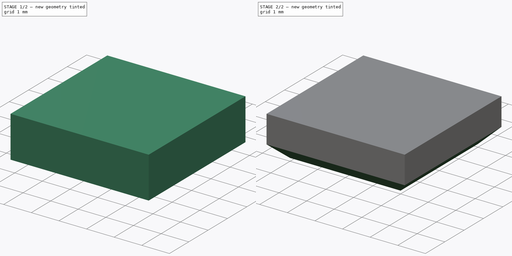
[diagram: build sequence overview — one tinted view per stage of 2, left to right]
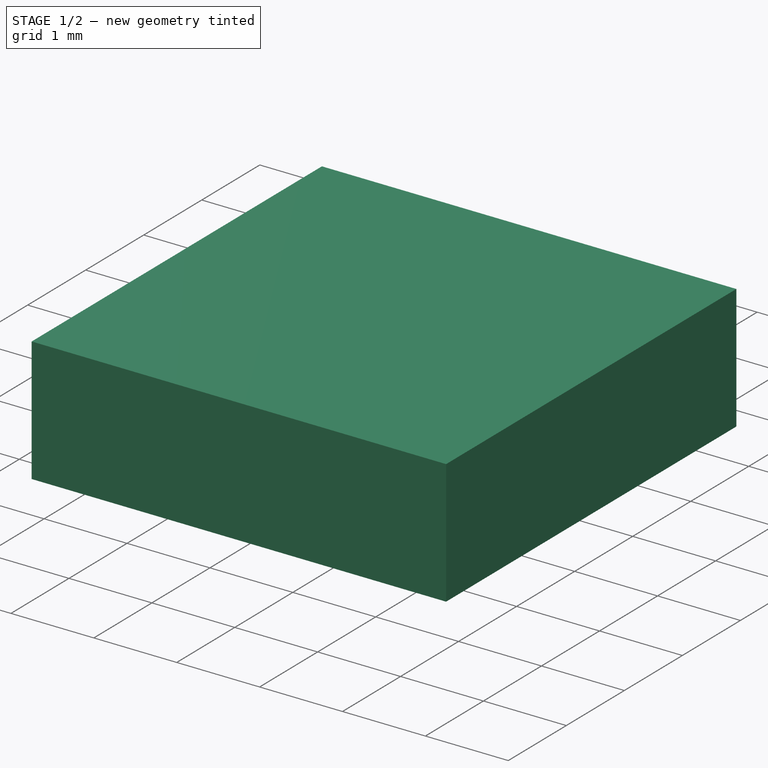
[diagram: stage 1 of 2 — iso view after this stage's code; geometry added in this stage tinted green]
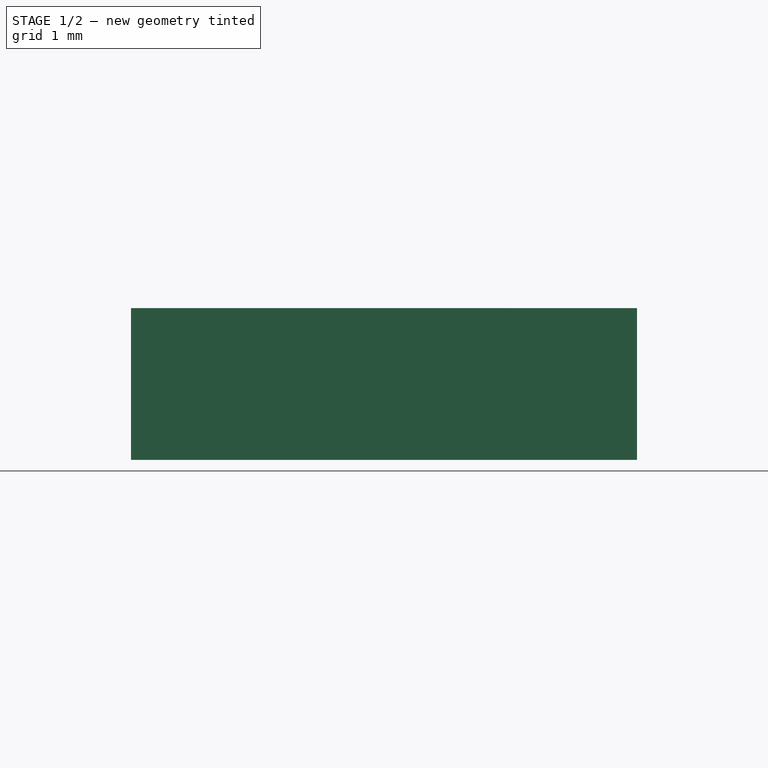
[diagram: stage 1 of 2 — front view after this stage's code; geometry added in this stage tinted green]
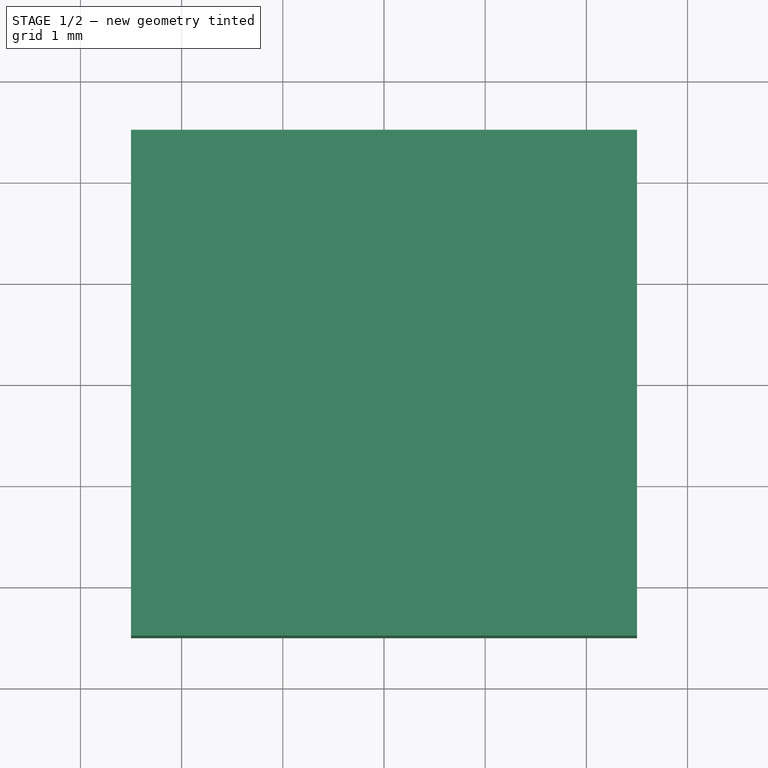
[diagram: stage 1 of 2 — top view after this stage's code; geometry added in this stage tinted green]
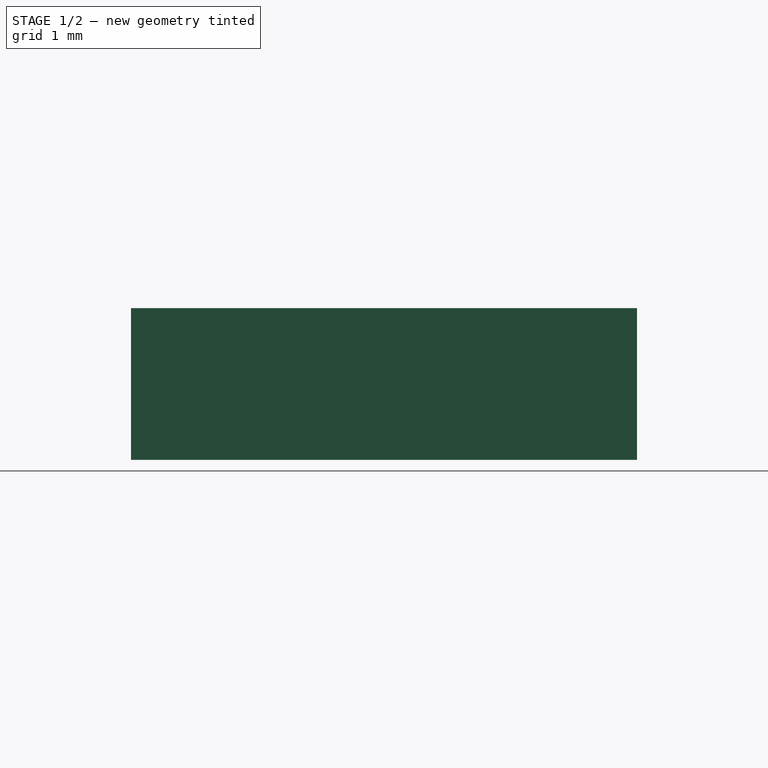
[diagram: stage 1 of 2 — right view after this stage's code; geometry added in this stage tinted green]
FCSTD DOCUMENT  (FreeCAD 0.18R15969 (Git))
Label: rubber
License: All rights reserved
LicenseURL: http://en.wikipedia.org/wiki/All_rights_reserved
objects: Sketcher::SketchObject×1, PartDesign::Pad×1, PartDesign::Chamfer×1, PartDesign::Body×1
note: 5 computed .brp shape members not serialized (recipe doc carries the construction recipe); baked Part::Feature solids carry a one-line shape summary decoded from their .brp

FEATURE [Sketcher::SketchObject] Sketch
  MapMode = 5
  Support = -> [XY_Plane]
  sketch-geometry (5):
    g0: LineSegment StartX=-2.5 StartY=2.5 StartZ=0 EndX=-2.5 EndY=-2.5 EndZ=0
    g1: LineSegment StartX=-2.5 StartY=-2.5 StartZ=0 EndX=2.5 EndY=-2.5 EndZ=0
    g2: LineSegment StartX=2.5 StartY=-2.5 StartZ=0 EndX=2.5 EndY=2.5 EndZ=0
    g3: LineSegment StartX=2.5 StartY=2.5 StartZ=0 EndX=-2.5 EndY=2.5 EndZ=0
    g4: Circle [constr] CenterX=0 CenterY=0 CenterZ=0 NormalX=0 NormalY=0 NormalZ=1 AngleXU=0 Radius=3.53553
  constraints (14):
    c: Coincident(g0,g1)
    c: Coincident(g1,g2)
    c: Coincident(g2,g3)
    c: Coincident(g3,g0)
    c: Equal(g0,g1)
    c: Equal(g0,g2)
    c: Equal(g0,g3)
    c: PointOnObject(g0,g4)
    c: PointOnObject(g1,g4)
    c: PointOnObject(g2,g4)
    c: PointOnObject(g3,g4)
    c: Coincident(g4,g-1)
    c: Horizontal(g3)
    c: DistanceX(g3,g3) = 5
FEATURE [PartDesign::Pad] Pad
  Length = 1.5
  Length2 = 100
  Profile = -> Sketch
  Refine = true
  Type = 0
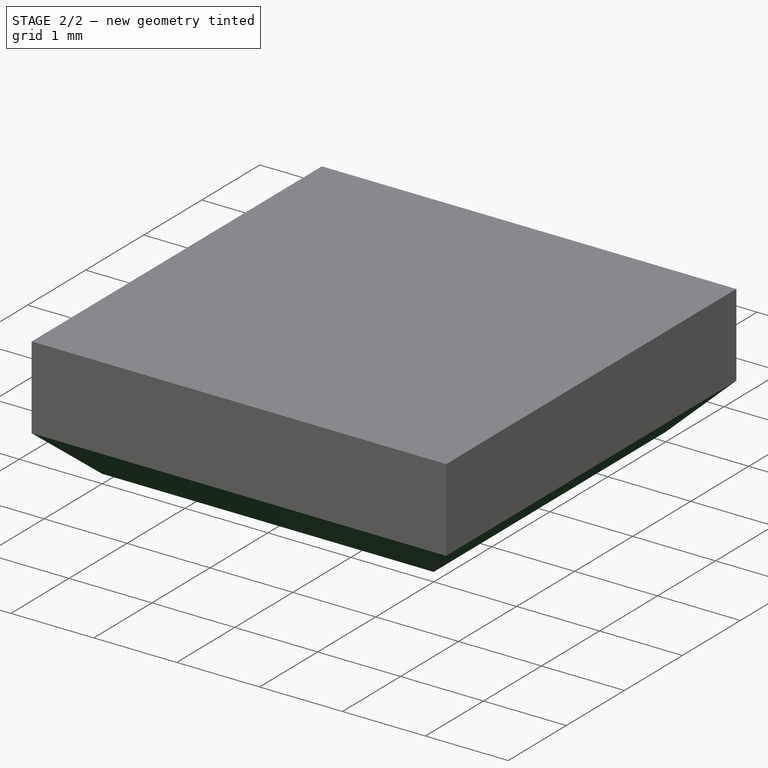
[diagram: stage 2 of 2 — iso view after this stage's code; geometry added in this stage tinted green]
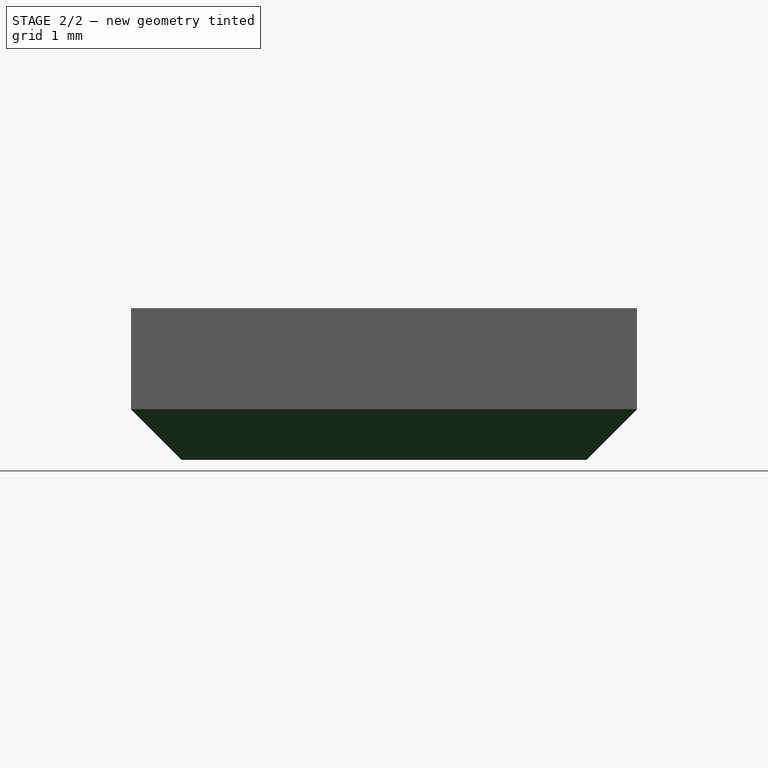
[diagram: stage 2 of 2 — front view after this stage's code; geometry added in this stage tinted green]
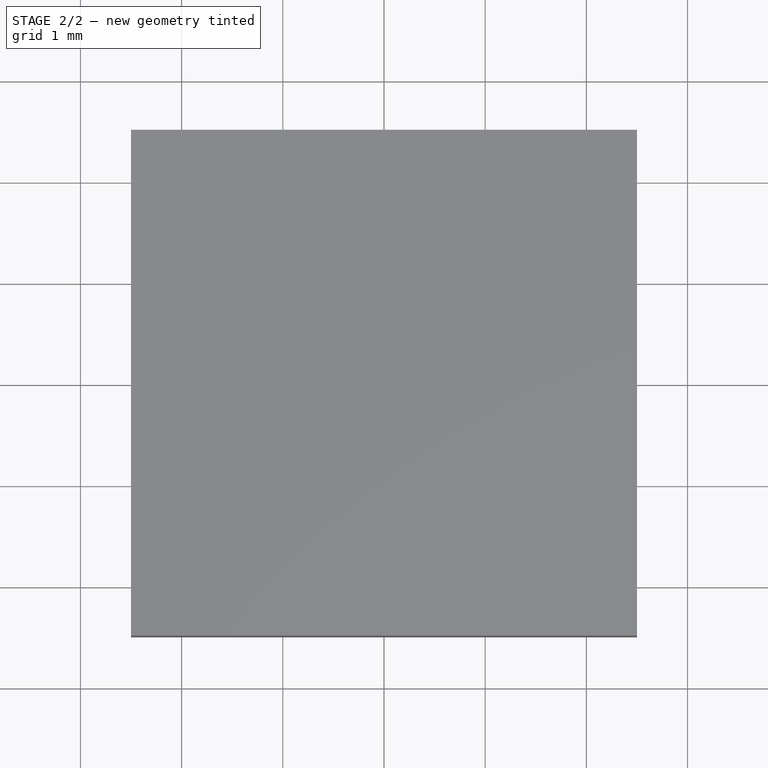
[diagram: stage 2 of 2 — top view after this stage's code; geometry added in this stage tinted green]
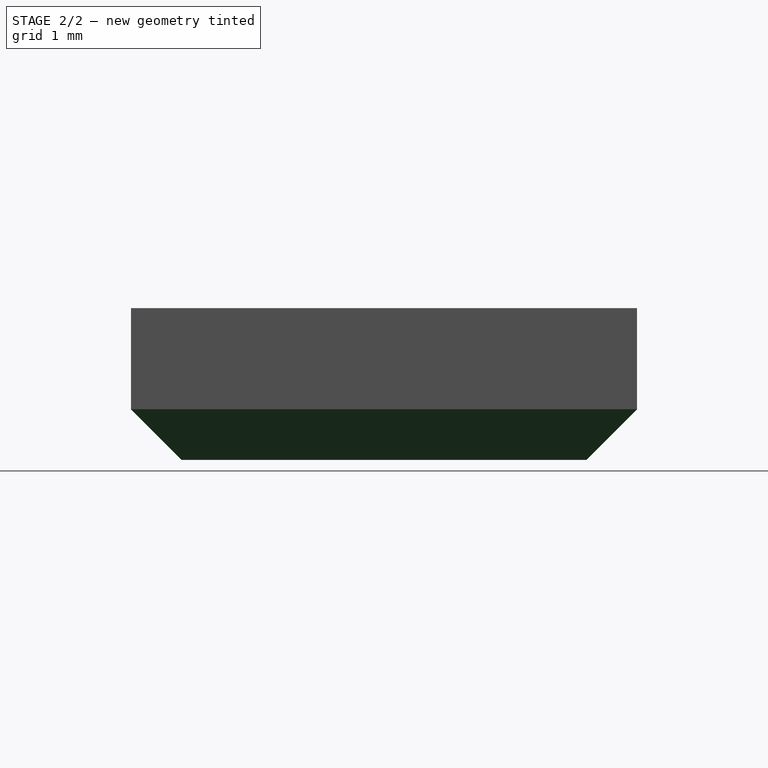
[diagram: stage 2 of 2 — right view after this stage's code; geometry added in this stage tinted green]
FEATURE [PartDesign::Chamfer] Chamfer
  Base = -> Pad [Edge3,Edge6,Edge9,Edge11]
  BaseFeature = -> Pad
  Size = 0.5
FEATURE [PartDesign::Body] Body
  Group = -> [Sketch,Pad,Chamfer]
  Origin = -> Origin
  Tip = -> Chamfer
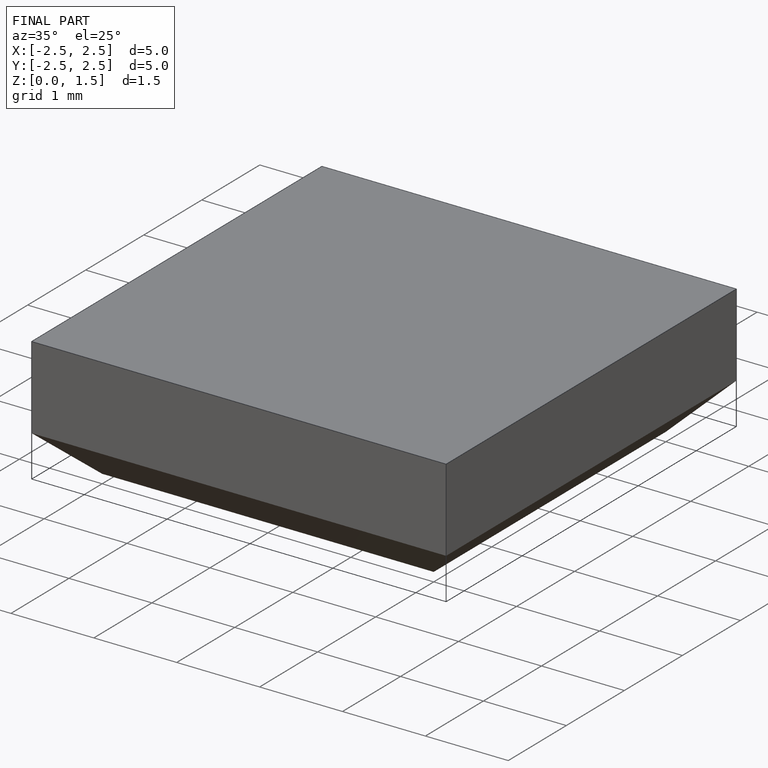
[diagram: finished part — iso view with bounding-box wireframe]
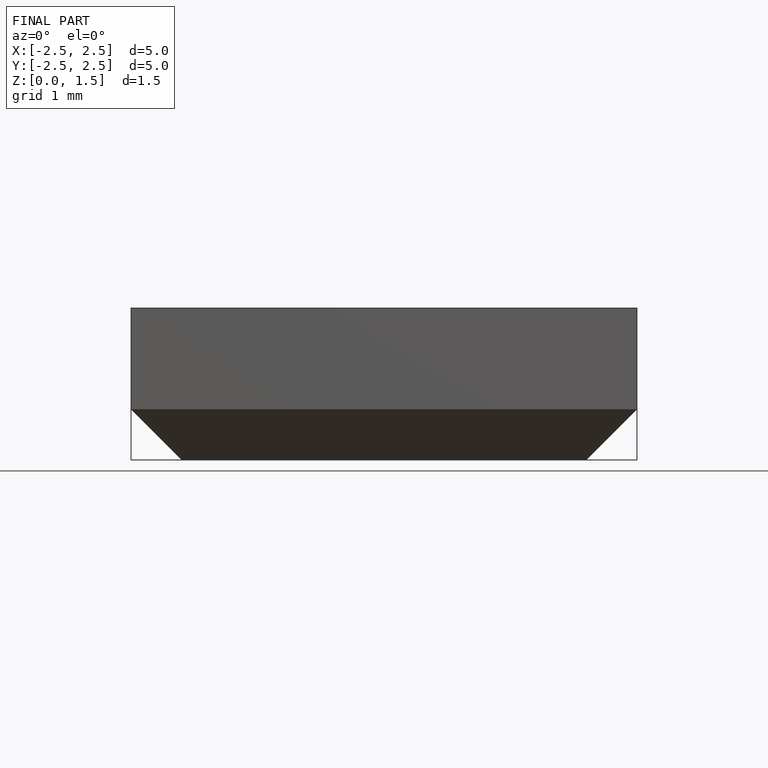
[diagram: finished part — front view with bounding-box wireframe]
